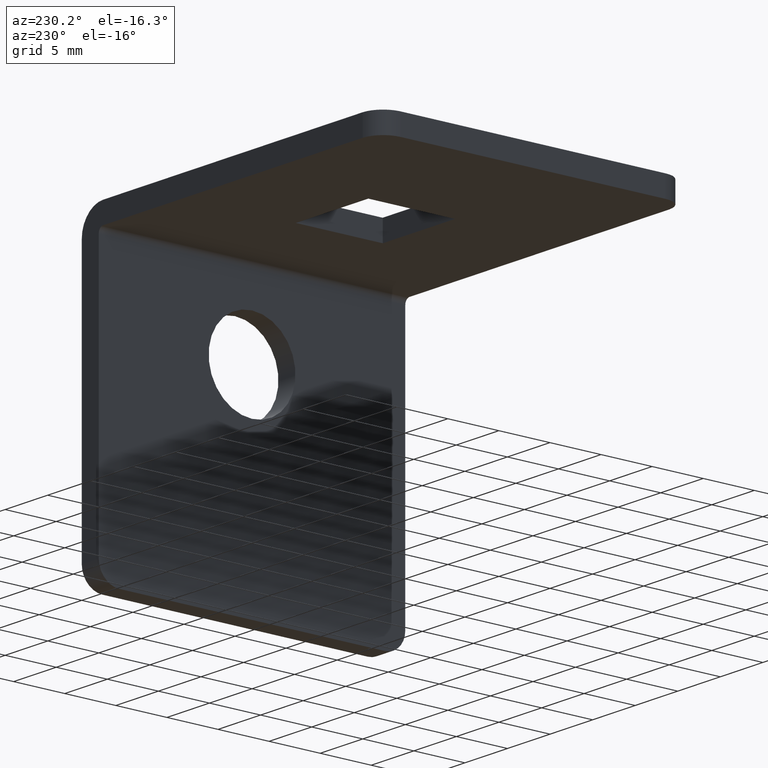
[diagram: clean part render]
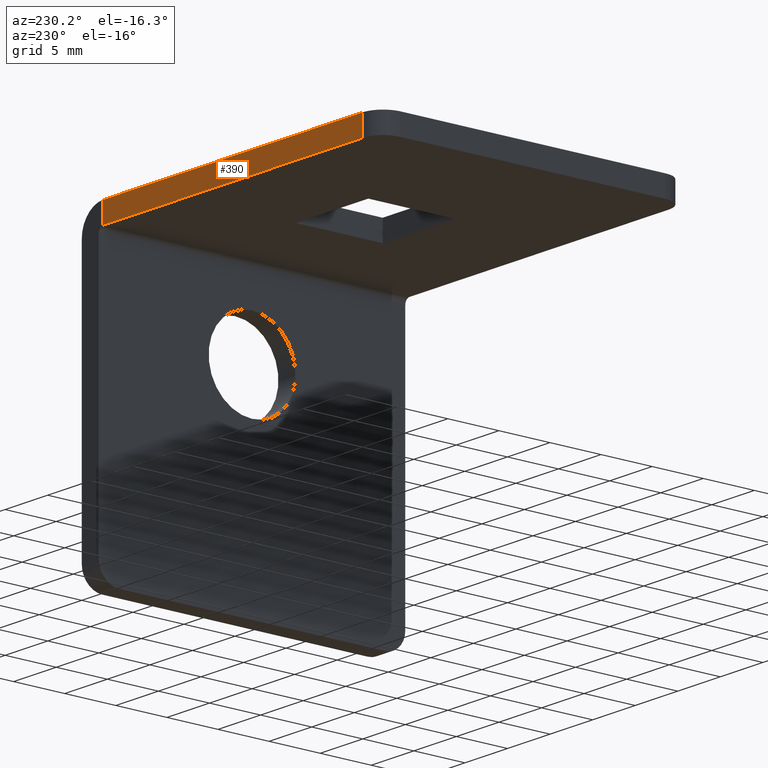
[diagram: same view with one face highlighted and labeled with its STEP entity id]
A machine part, auxiliary view. The second image highlights one B-rep face of the part: STEP entity #390.
In plain terms, the highlighted planar face has unit normal (0, 1, 0).
Its self-contained STEP definition (entity closure, byte-faithful):
#23=PLANE('',#422);
#42=FACE_OUTER_BOUND('',#66,.T.);
#66=EDGE_LOOP('',(#296,#297,#298,#299));
#98=LINE('',#601,#138);
#100=LINE('',#607,#140);
#101=LINE('',#609,#141);
#102=LINE('',#610,#142);
#138=VECTOR('',#483,2.);
#140=VECTOR('',#489,30.5);
#141=VECTOR('',#490,2.);
#142=VECTOR('',#491,30.5);
#194=VERTEX_POINT('',#598);
#195=VERTEX_POINT('',#600);
#197=VERTEX_POINT('',#606);
#198=VERTEX_POINT('',#608);
#232=EDGE_CURVE('',#194,#195,#98,.T.);
#235=EDGE_CURVE('',#194,#197,#100,.T.);
#236=EDGE_CURVE('',#197,#198,#101,.T.);
#237=EDGE_CURVE('',#198,#195,#102,.T.);
#296=ORIENTED_EDGE('',*,*,#232,.F.);
#297=ORIENTED_EDGE('',*,*,#235,.T.);
#298=ORIENTED_EDGE('',*,*,#236,.T.);
#299=ORIENTED_EDGE('',*,*,#237,.T.);
#390=ADVANCED_FACE('',(#42),#23,.T.);
#422=AXIS2_PLACEMENT_3D('',#605,#487,#488);
#483=DIRECTION('',(0.,0.,-1.));
#487=DIRECTION('center_axis',(0.,1.,0.));
#488=DIRECTION('ref_axis',(0.,0.,1.));
#489=DIRECTION('',(1.,0.,0.));
#490=DIRECTION('',(0.,0.,-1.));
#491=DIRECTION('',(-1.,0.,0.));
#598=CARTESIAN_POINT('',(2.,30.,2.));
#600=CARTESIAN_POINT('',(2.,30.,0.));
#601=CARTESIAN_POINT('',(2.,30.,0.));
#605=CARTESIAN_POINT('Origin',(0.,30.,0.));
#606=CARTESIAN_POINT('',(32.5,30.,2.));
#607=CARTESIAN_POINT('',(35.,30.,2.));
#608=CARTESIAN_POINT('',(32.5,30.,0.));
#609=CARTESIAN_POINT('',(32.5,30.,0.));
#610=CARTESIAN_POINT('',(35.,30.,0.));